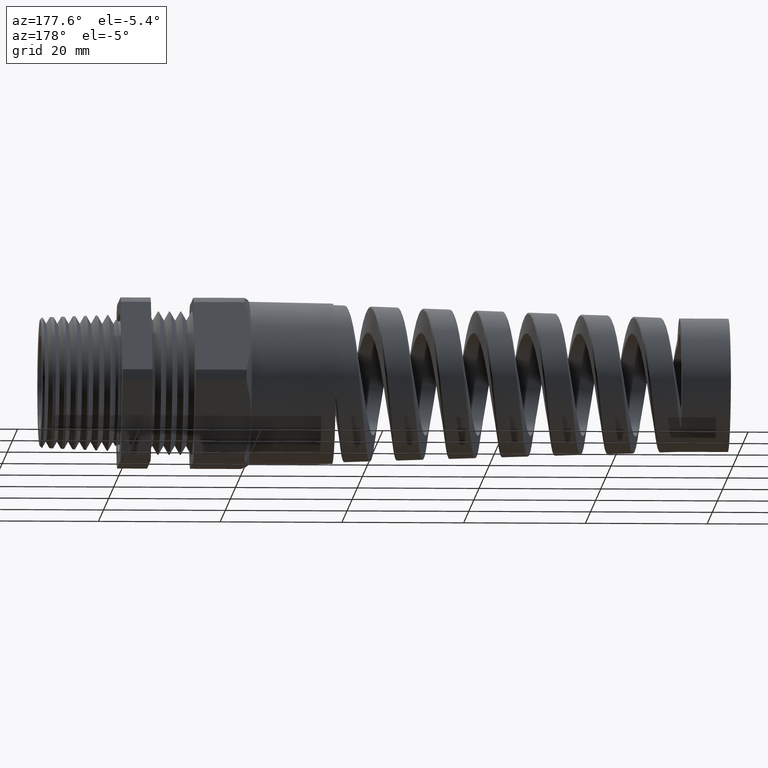
[diagram: clean part render]
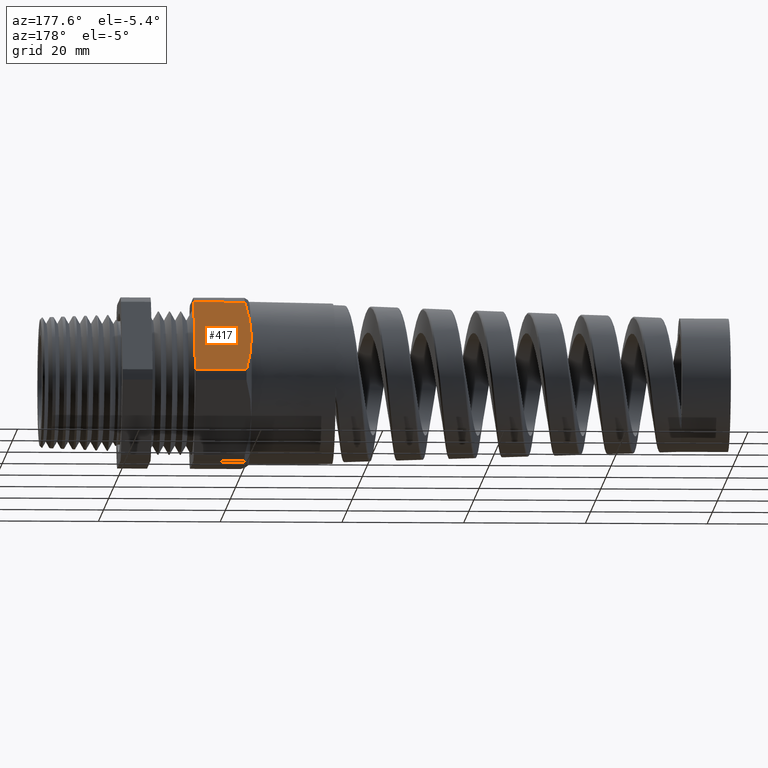
[diagram: same view with one face highlighted and labeled with its STEP entity id]
A machine part, auxiliary view. The second image highlights one B-rep face of the part: STEP entity #417.
In plain terms, the highlighted planar face has unit normal (0, 0.866, 0.5).
Its self-contained STEP definition (entity closure, byte-faithful):
#396 = VERTEX_POINT ( 'NONE', #2847 ) ;
#397 = ORIENTED_EDGE ( 'NONE', *, *, #398, .T. ) ;
#398 = EDGE_CURVE ( 'NONE', #396, #4989, #2838, .T. ) ;
#399 = ORIENTED_EDGE ( 'NONE', *, *, #4785, .T. ) ;
#400 = ORIENTED_EDGE ( 'NONE', *, *, #401, .T. ) ;
#401 = EDGE_CURVE ( 'NONE', #4981, #4967, #2837, .T. ) ;
#417 = ADVANCED_FACE ( 'NONE', ( #2887 ), #2886, .T. ) ;
#418 = EDGE_LOOP ( 'NONE', ( #419, #420, #397, #399, #400 ) ) ;
#419 = ORIENTED_EDGE ( 'NONE', *, *, #4969, .F. ) ;
#420 = ORIENTED_EDGE ( 'NONE', *, *, #421, .T. ) ;
#421 = EDGE_CURVE ( 'NONE', #4973, #396, #2881, .T. ) ;
#2826 = DIRECTION ( 'NONE',  ( 0.0000000000000000000, 0.5000000000000001100, -0.8660254037844386000 ) ) ;
#2827 = CARTESIAN_POINT ( 'NONE',  ( -0.8007805228795398200, 0.3253325497488163100, 0.4965074944791208500 ) ) ;
#2828 = CARTESIAN_POINT ( 'NONE',  ( -0.8121583111907523200, 0.3472125816136489900, 0.4586101676180046600 ) ) ;
#2829 = CARTESIAN_POINT ( 'NONE',  ( -0.8214003591281861000, 0.3692675418263461900, 0.4204098559707027900 ) ) ;
#2830 = CARTESIAN_POINT ( 'NONE',  ( -0.8309221305962482000, 0.4027055574402840200, 0.3624935140230810000 ) ) ;
#2831 = CARTESIAN_POINT ( 'NONE',  ( -0.8333721404368322800, 0.4139108550001431300, 0.3430853693354772900 ) ) ;
#2832 = CARTESIAN_POINT ( 'NONE',  ( -0.8366665420851497900, 0.4364529586652056700, 0.3040413004781043500 ) ) ;
#2833 = CARTESIAN_POINT ( 'NONE',  ( -0.8374999999999999100, 0.4477627782903754700, 0.2844521182628709200 ) ) ;
#2834 = CARTESIAN_POINT ( 'NONE',  ( -0.8375000000000000200, 0.4589934640057524200, 0.2650000000000000700 ) ) ;
#2835 = VECTOR ( 'NONE', #2826, 39.37007874015748100 ) ;
#2836 = CARTESIAN_POINT ( 'NONE',  ( -0.4708333333333333300, 0.5755934640057525100, 0.06304287583746889800 ) ) ;
#2837 = LINE ( 'NONE', #2836, #2835 ) ;
#2838 = B_SPLINE_CURVE_WITH_KNOTS ( 'NONE', 3,
 ( #2834, #2833, #2832, #2831, #2830, #2829, #2828, #2827 ),
 .UNSPECIFIED., .F., .F.,
 ( 4, 2, 2, 4 ),
 ( 0.006851532669467767300, 0.008552772946843112700, 0.01025401322421845600, 0.01365649377896913800 ),
 .UNSPECIFIED. ) ;
#2847 = CARTESIAN_POINT ( 'NONE',  ( -0.8375000000000000200, 0.4589934640057524200, 0.2650000000000000700 ) ) ;
#2875 = CARTESIAN_POINT ( 'NONE',  ( -0.8375000000000000200, 0.4816077763961066300, 0.2258308619616720700 ) ) ;
#2876 = CARTESIAN_POINT ( 'NONE',  ( -0.8341133144435343100, 0.5040353240607424700, 0.1869852099173502400 ) ) ;
#2877 = CARTESIAN_POINT ( 'NONE',  ( -0.8214552305450429900, 0.5485658965634915300, 0.1098559958524596100 ) ) ;
#2878 = CARTESIAN_POINT ( 'NONE',  ( -0.8122123161882932600, 0.5706704922010212800, 0.07156971312749205200 ) ) ;
#2879 = CARTESIAN_POINT ( 'NONE',  ( -0.8007805228795399400, 0.5926543782626886300, 0.03349250552087937300 ) ) ;
#2881 = B_SPLINE_CURVE_WITH_KNOTS ( 'NONE', 3,
 ( #2879, #2878, #2877, #2876, #2875, #2932 ),
 .UNSPECIFIED., .F., .F.,
 ( 4, 2, 4 ),
 ( 2.361309237138549100E-007, 0.003425884400195740800, 0.006851532669467767300 ),
 .UNSPECIFIED. ) ;
#2882 = DIRECTION ( 'NONE',  ( 0.0000000000000000000, -0.5000000000000001100, 0.8660254037844386000 ) ) ;
#2883 = DIRECTION ( 'NONE',  ( 0.0000000000000000000, 0.8660254037844386000, 0.5000000000000001100 ) ) ;
#2884 = CARTESIAN_POINT ( 'NONE',  ( -2.533243884661831900, 0.5926543782626886300, 0.03349250552087932500 ) ) ;
#2885 = AXIS2_PLACEMENT_3D ( 'NONE', #2884, #2883, #2882 ) ;
#2886 = PLANE ( 'NONE',  #2885 ) ;
#2887 = FACE_OUTER_BOUND ( 'NONE', #418, .T. ) ;
#2932 = CARTESIAN_POINT ( 'NONE',  ( -0.8375000000000000200, 0.4589934640057524200, 0.2650000000000000700 ) ) ;
#4785 = EDGE_CURVE ( 'NONE', #4989, #4981, #12900, .T. ) ;
#4967 = VERTEX_POINT ( 'NONE', #12985 ) ;
#4969 = EDGE_CURVE ( 'NONE', #4973, #4967, #12983, .T. ) ;
#4973 = VERTEX_POINT ( 'NONE', #12979 ) ;
#4981 = VERTEX_POINT ( 'NONE', #13025 ) ;
#4989 = VERTEX_POINT ( 'NONE', #13012 ) ;
#12897 = DIRECTION ( 'NONE',  ( 1.000000000000000000, 0.0000000000000000000, 0.0000000000000000000 ) ) ;
#12898 = VECTOR ( 'NONE', #12897, 39.37007874015748100 ) ;
#12899 = CARTESIAN_POINT ( 'NONE',  ( -2.533243884661831900, 0.3253325497488162000, 0.4965074944791207400 ) ) ;
#12900 = LINE ( 'NONE', #12899, #12898 ) ;
#12979 = CARTESIAN_POINT ( 'NONE',  ( -0.8007805228795399400, 0.5926543782626886300, 0.03349250552087937300 ) ) ;
#12980 = DIRECTION ( 'NONE',  ( 1.000000000000000000, 0.0000000000000000000, 0.0000000000000000000 ) ) ;
#12981 = VECTOR ( 'NONE', #12980, 39.37007874015748100 ) ;
#12982 = CARTESIAN_POINT ( 'NONE',  ( -2.533243884661831900, 0.5926543782626885200, 0.03349250552087933200 ) ) ;
#12983 = LINE ( 'NONE', #12982, #12981 ) ;
#12985 = CARTESIAN_POINT ( 'NONE',  ( -0.4708333333333333300, 0.5926543782626885200, 0.03349250552087933200 ) ) ;
#13012 = CARTESIAN_POINT ( 'NONE',  ( -0.8007805228795398200, 0.3253325497488163100, 0.4965074944791208500 ) ) ;
#13025 = CARTESIAN_POINT ( 'NONE',  ( -0.4708333333333333300, 0.3253325497488162000, 0.4965074944791207400 ) ) ;